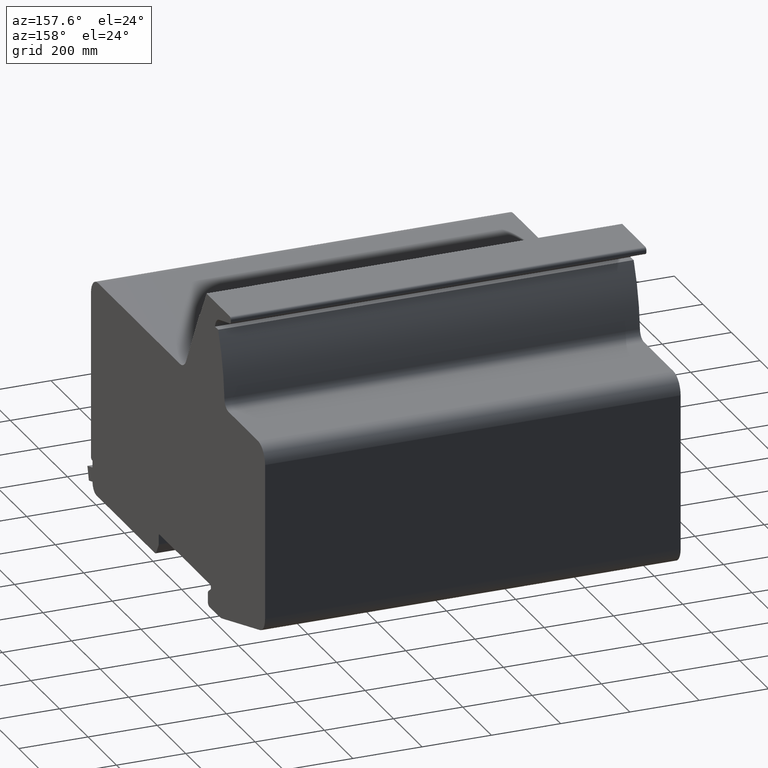
[diagram: clean part render]
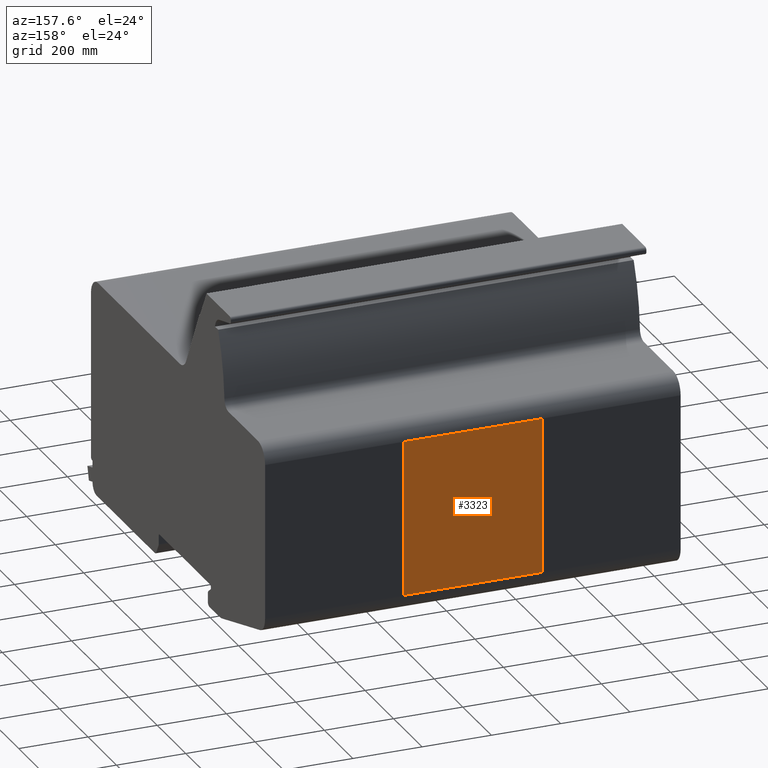
[diagram: same view with one face highlighted and labeled with its STEP entity id]
A machine part, auxiliary view. The second image highlights one B-rep face of the part: STEP entity #3323.
In plain terms, the highlighted planar face has unit normal (0, 1, 0).
Its self-contained STEP definition (entity closure, byte-faithful):
#3265=CARTESIAN_POINT('',(800.0,384.99999999999989,507.50000000000023));
#3266=VERTEX_POINT('',#3265);
#3274=CARTESIAN_POINT('',(400.0,384.99999999999989,507.50000000000023));
#3275=VERTEX_POINT('',#3274);
#3276=CARTESIAN_POINT('',(400.0,384.99999999999989,507.50000000000023));
#3277=DIRECTION('',(1.0,0.0,0.0));
#3278=VECTOR('',#3277,400.0);
#3279=LINE('',#3276,#3278);
#3280=EDGE_CURVE('',#3275,#3266,#3279,.T.);
#3293=CARTESIAN_POINT('',(400.0,384.99999999999989,507.50000000000023));
#3294=DIRECTION('',(0.0,1.0,0.0));
#3295=DIRECTION('',(0.0,0.0,1.0));
#3296=AXIS2_PLACEMENT_3D('',#3293,#3294,#3295);
#3297=PLANE('',#3296);
#3298=CARTESIAN_POINT('',(800.0,385.0,58.281992166299986));
#3299=VERTEX_POINT('',#3298);
#3300=CARTESIAN_POINT('',(800.0,384.99999999999989,507.50000000000023));
#3301=DIRECTION('',(0.0,0.0,-1.0));
#3302=VECTOR('',#3301,449.21800783370026);
#3303=LINE('',#3300,#3302);
#3304=EDGE_CURVE('',#3266,#3299,#3303,.T.);
#3305=ORIENTED_EDGE('',*,*,#3304,.T.);
#3306=CARTESIAN_POINT('',(400.0,385.0,58.281992166299986));
#3307=VERTEX_POINT('',#3306);
#3308=CARTESIAN_POINT('',(400.0,385.0,58.281992166299986));
#3309=DIRECTION('',(1.0,0.0,0.0));
#3310=VECTOR('',#3309,400.0);
#3311=LINE('',#3308,#3310);
#3312=EDGE_CURVE('',#3307,#3299,#3311,.T.);
#3313=ORIENTED_EDGE('',*,*,#3312,.F.);
#3314=CARTESIAN_POINT('',(400.0,385.0,58.281992166299986));
#3315=DIRECTION('',(0.0,0.0,1.0));
#3316=VECTOR('',#3315,449.21800783370026);
#3317=LINE('',#3314,#3316);
#3318=EDGE_CURVE('',#3307,#3275,#3317,.T.);
#3319=ORIENTED_EDGE('',*,*,#3318,.T.);
#3320=ORIENTED_EDGE('',*,*,#3280,.T.);
#3321=EDGE_LOOP('',(#3305,#3313,#3319,#3320));
#3322=FACE_OUTER_BOUND('',#3321,.T.);
#3323=ADVANCED_FACE('',(#3322),#3297,.T.);